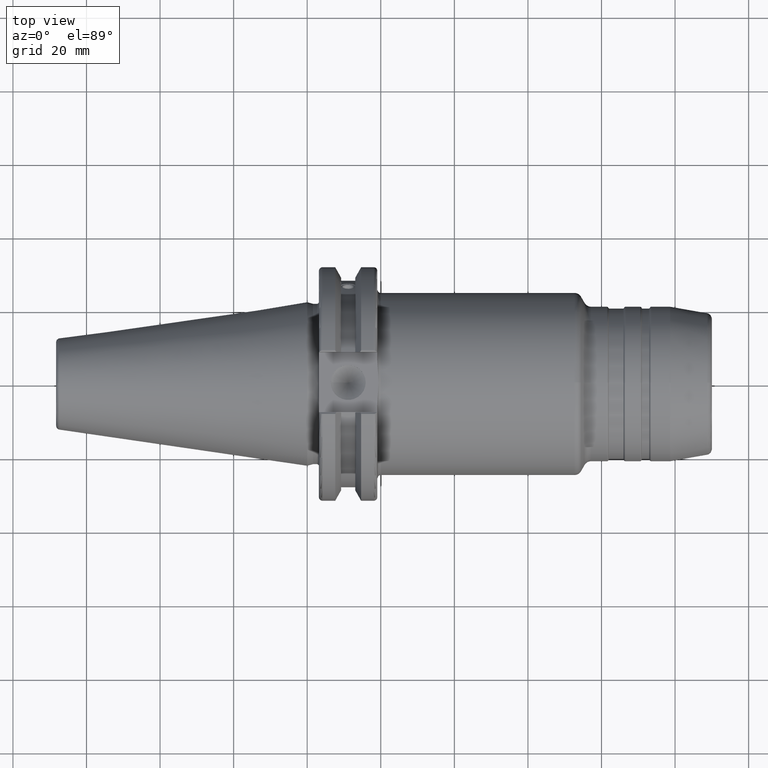
[diagram: clean part render]
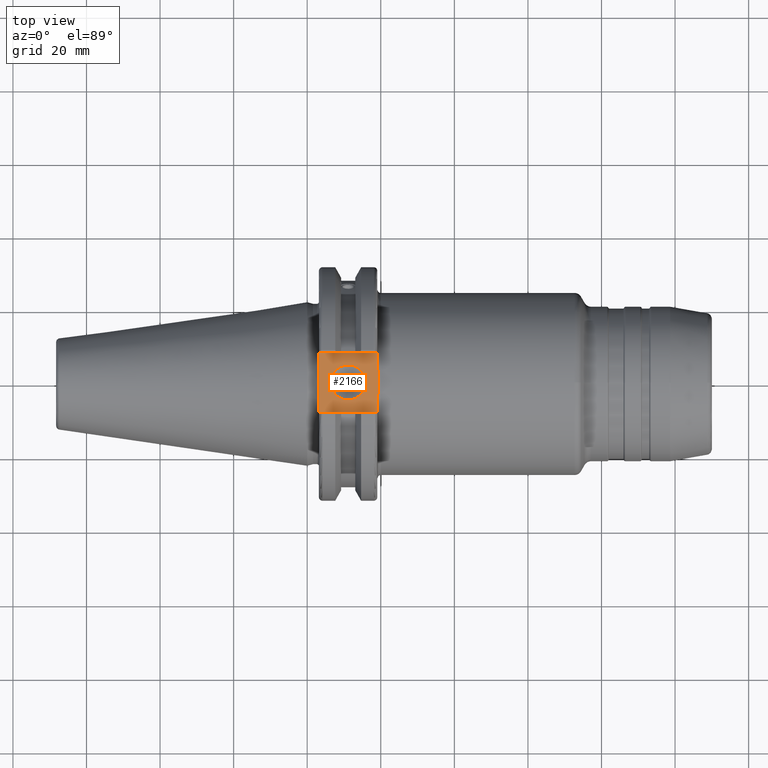
[diagram: same view with one face highlighted and labeled with its STEP entity id]
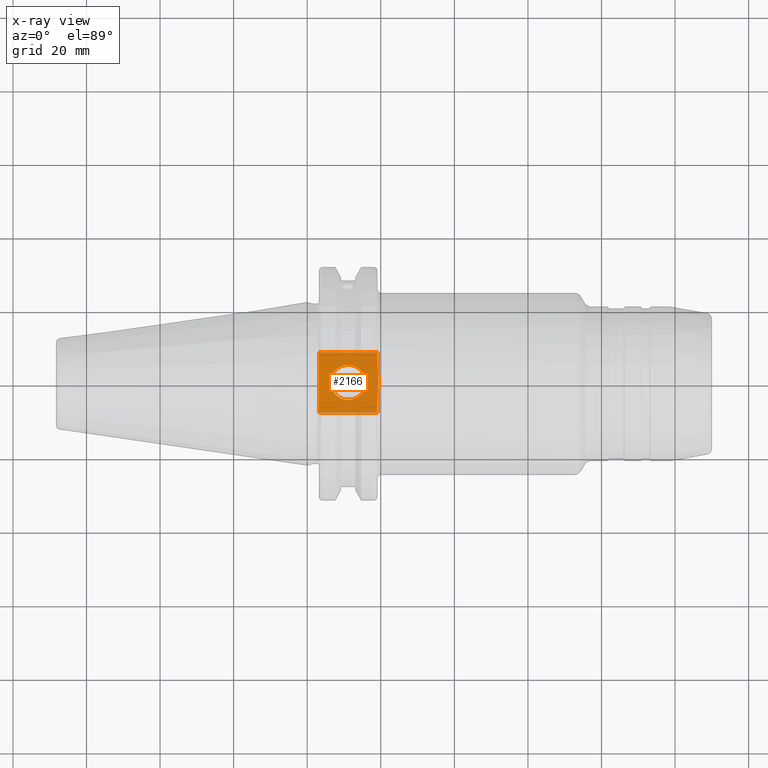
[diagram: x-ray of the same camera — body ghosted, the highlighted face saturated]
A machine part, top view. The second image highlights one B-rep face of the part: STEP entity #2166.
The next image is the same camera in x-ray: the body ghosted, the highlighted face saturated — about 0% of this face is hidden behind the body in this view.
In plain terms, the highlighted planar face has unit normal (0, 0, 1).
Its self-contained STEP definition (entity closure, byte-faithful):
#80=PLANE('',#2484);
#133=FACE_BOUND('',#387,.T.);
#139=B_SPLINE_CURVE_WITH_KNOTS('',3,(#3471,#3472,#3473,#3474,#3475,#3476,
#3477,#3478,#3479,#3480),.UNSPECIFIED.,.F.,.F.,(4,2,2,2,4),(1.28229186042809,
1.47392183654147,1.862003561099,2.25008528565654,2.44171526176992),
 .UNSPECIFIED.);
#267=FACE_OUTER_BOUND('',#386,.T.);
#386=EDGE_LOOP('',(#1988,#1989,#1990,#1991,#1992,#1993));
#387=EDGE_LOOP('',(#1994,#1995));
#409=LINE('',#3512,#503);
#420=LINE('',#3593,#514);
#452=LINE('',#3941,#546);
#463=LINE('',#4011,#557);
#465=LINE('',#4053,#559);
#503=VECTOR('',#2735,10.);
#514=VECTOR('',#2806,10.);
#546=VECTOR('',#3018,10.);
#557=VECTOR('',#3043,10.);
#559=VECTOR('',#3053,10.);
#751=CIRCLE('',#2470,4.7625);
#752=CIRCLE('',#2471,4.7625);
#839=VERTEX_POINT('',#3469);
#840=VERTEX_POINT('',#3470);
#846=VERTEX_POINT('',#3511);
#868=VERTEX_POINT('',#3591);
#951=VERTEX_POINT('',#3938);
#952=VERTEX_POINT('',#3940);
#1001=VERTEX_POINT('',#4204);
#1002=VERTEX_POINT('',#4205);
#1105=EDGE_CURVE('',#839,#840,#139,.F.);
#1112=EDGE_CURVE('',#839,#846,#409,.T.);
#1144=EDGE_CURVE('',#868,#840,#420,.T.);
#1254=EDGE_CURVE('',#951,#952,#452,.T.);
#1275=EDGE_CURVE('',#868,#952,#463,.T.);
#1283=EDGE_CURVE('',#951,#846,#465,.T.);
#1332=EDGE_CURVE('',#1001,#1002,#751,.T.);
#1333=EDGE_CURVE('',#1002,#1001,#752,.T.);
#1988=ORIENTED_EDGE('',*,*,#1144,.F.);
#1989=ORIENTED_EDGE('',*,*,#1275,.T.);
#1990=ORIENTED_EDGE('',*,*,#1254,.F.);
#1991=ORIENTED_EDGE('',*,*,#1283,.T.);
#1992=ORIENTED_EDGE('',*,*,#1112,.F.);
#1993=ORIENTED_EDGE('',*,*,#1105,.T.);
#1994=ORIENTED_EDGE('',*,*,#1332,.T.);
#1995=ORIENTED_EDGE('',*,*,#1333,.T.);
#2166=ADVANCED_FACE('',(#267,#133),#80,.T.);
#2470=AXIS2_PLACEMENT_3D('',#4206,#3142,#3143);
#2471=AXIS2_PLACEMENT_3D('',#4207,#3144,#3145);
#2484=AXIS2_PLACEMENT_3D('',#4221,#3171,#3172);
#2735=DIRECTION('',(0.,-1.,0.));
#2806=DIRECTION('',(0.,-1.,0.));
#3018=DIRECTION('',(0.,1.,0.));
#3043=DIRECTION('',(-1.,0.,0.));
#3053=DIRECTION('',(1.,-1.31581988103722E-16,0.));
#3142=DIRECTION('center_axis',(0.,0.,-1.));
#3143=DIRECTION('ref_axis',(1.,0.,0.));
#3144=DIRECTION('center_axis',(0.,0.,-1.));
#3145=DIRECTION('ref_axis',(1.,0.,0.));
#3171=DIRECTION('center_axis',(0.,0.,1.));
#3172=DIRECTION('ref_axis',(1.,0.,0.));
#3469=CARTESIAN_POINT('',(19.05,-6.16948133962656,25.));
#3470=CARTESIAN_POINT('',(19.05,6.16948133962656,25.));
#3471=CARTESIAN_POINT('Ctrl Pts',(19.05,6.16948133962656,25.));
#3472=CARTESIAN_POINT('Ctrl Pts',(19.05,5.53071475258196,25.));
#3473=CARTESIAN_POINT('Ctrl Pts',(19.0917093675371,4.76533047486058,25.));
#3474=CARTESIAN_POINT('Ctrl Pts',(19.2334466867335,2.83816328553264,25.));
#3475=CARTESIAN_POINT('Ctrl Pts',(19.3885621722339,1.29360574852511,25.));
#3476=CARTESIAN_POINT('Ctrl Pts',(19.3885621722339,-1.29360574852511,25.));
#3477=CARTESIAN_POINT('Ctrl Pts',(19.2334466867335,-2.83816328553264,25.));
#3478=CARTESIAN_POINT('Ctrl Pts',(19.0917093675371,-4.76533047486058,25.));
#3479=CARTESIAN_POINT('Ctrl Pts',(19.05,-5.53071475258196,25.));
#3480=CARTESIAN_POINT('Ctrl Pts',(19.05,-6.16948133962656,25.));
#3511=CARTESIAN_POINT('',(19.05,-8.19,25.));
#3512=CARTESIAN_POINT('',(19.05,0.,25.));
#3591=CARTESIAN_POINT('',(19.05,8.19,25.));
#3593=CARTESIAN_POINT('',(19.05,0.,25.));
#3938=CARTESIAN_POINT('',(3.175,-8.19,25.));
#3940=CARTESIAN_POINT('',(3.175,8.19,25.));
#3941=CARTESIAN_POINT('',(3.175,15.875,25.));
#4011=CARTESIAN_POINT('',(20.05,8.19,25.));
#4053=CARTESIAN_POINT('',(3.175,-8.19,25.));
#4204=CARTESIAN_POINT('',(15.8966,0.,25.));
#4205=CARTESIAN_POINT('',(6.3716,-5.83238038093927E-16,25.));
#4206=CARTESIAN_POINT('Origin',(11.1341,0.,25.));
#4207=CARTESIAN_POINT('Origin',(11.1341,0.,25.));
#4221=CARTESIAN_POINT('Origin',(15.7075,0.,25.));